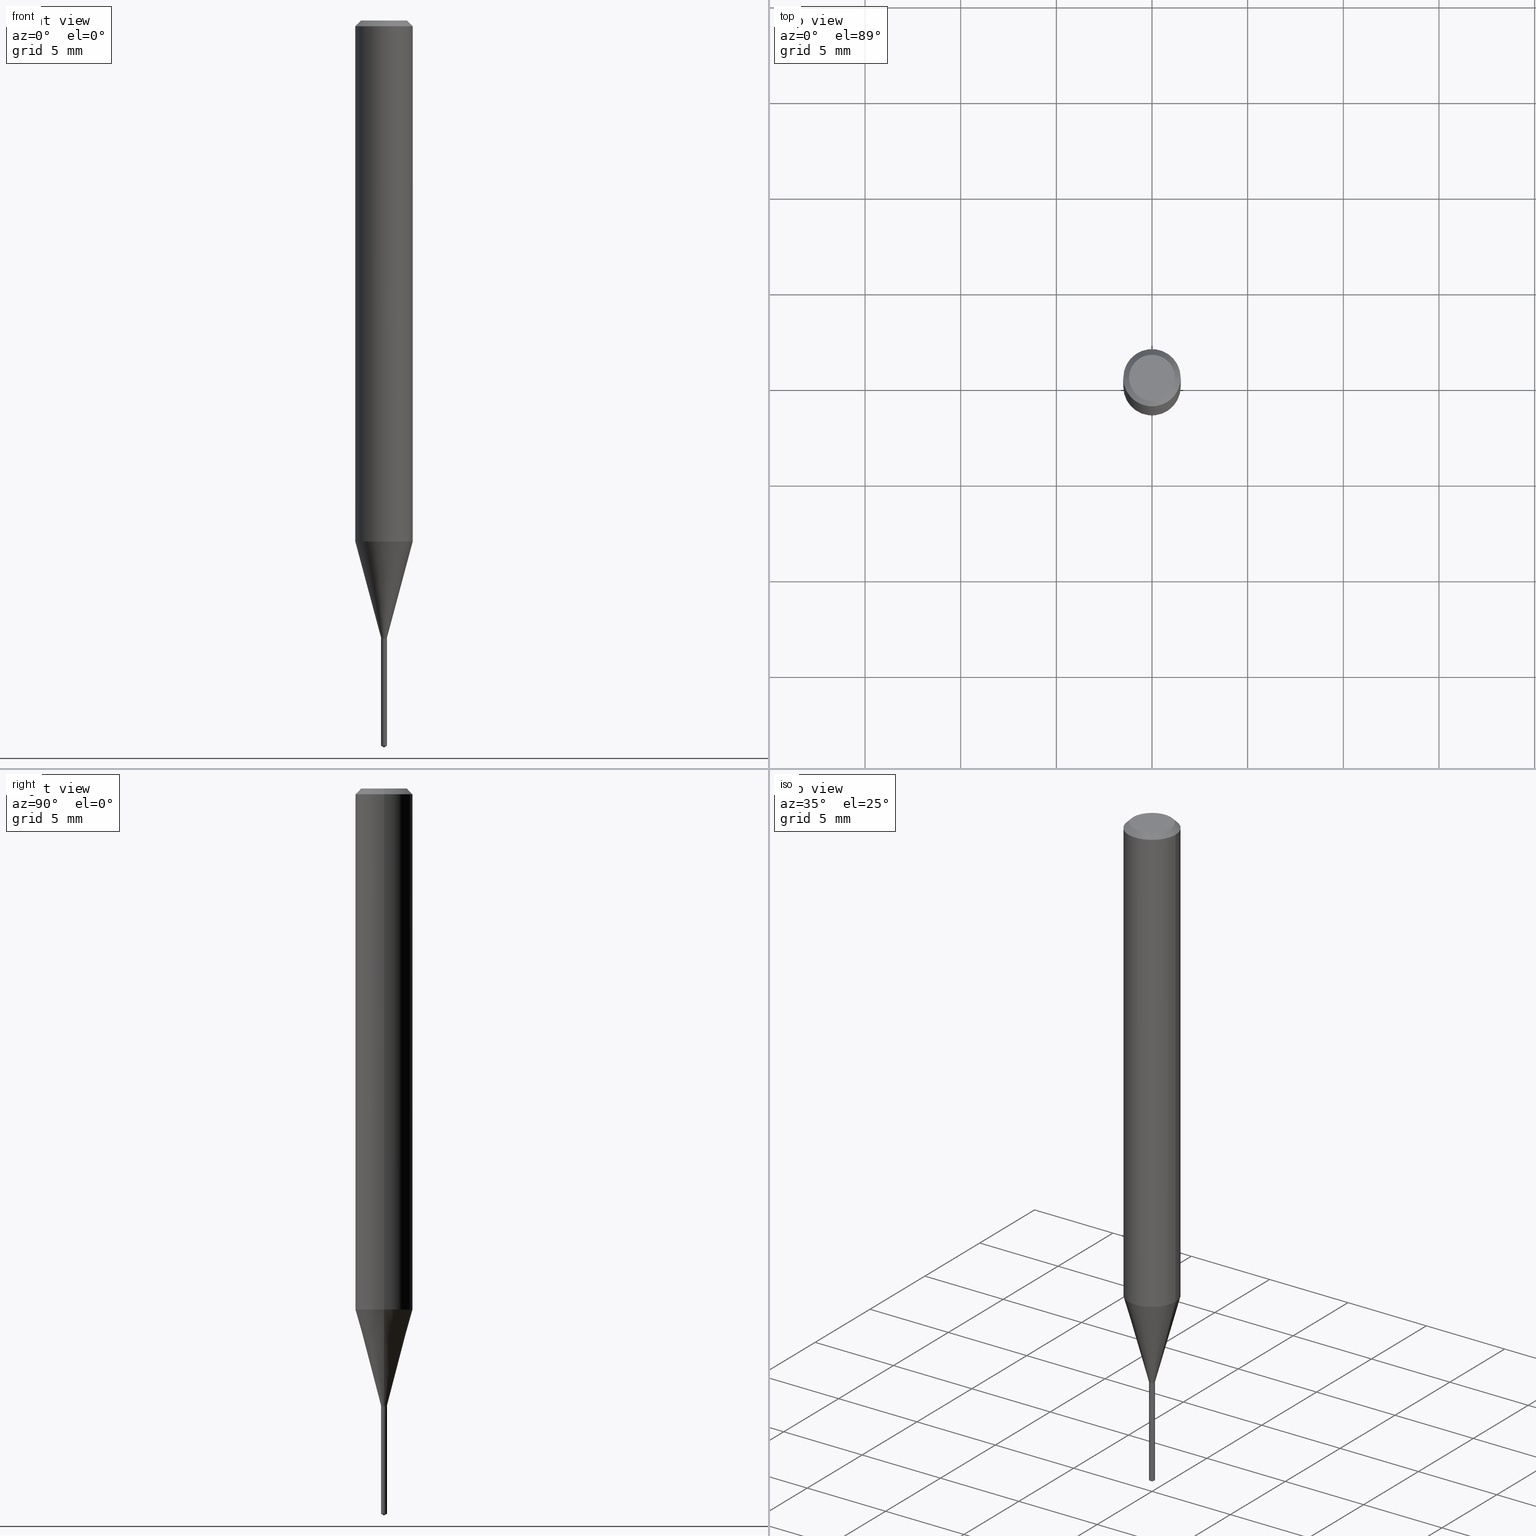
[diagram: canonical four-view strip — front | top / right | iso, engineering-drawing reading convention]
A machine part, canonical four-view strip (front | top / right | iso — engineering-drawing reading convention). The complete STEP part file that produces these views, byte-faithful:
ISO-10303-21;
HEADER;
FILE_DESCRIPTION (( 'STEP AP203' ),
    '1' );
FILE_NAME ('08255.STEP',
    '2024-04-24T13:57:39',
    ( '' ),
    ( '' ),
    'SwSTEP 2.0',
    'SolidWorks 2023',
    '' );
FILE_SCHEMA (( 'CONFIG_CONTROL_DESIGN' ));
ENDSEC;

DATA;
#1 = DIRECTION ( 'NONE',  ( -6.982962677686266711E-15, -1.000000000000000000, 0.000000000000000000 ) ) ;
#2 = ORIENTED_EDGE ( 'NONE', *, *, #7, .F. ) ;
#3 = PRODUCT_DEFINITION ( 'UNKNOWN', '', #20, #187 ) ;
#4 = AXIS2_PLACEMENT_3D ( 'NONE', #191, #333, #290 ) ;
#5 = ORIENTED_EDGE ( 'NONE', *, *, #41, .T. ) ;
#6 = EDGE_CURVE ( 'NONE', #53, #372, #478, .T. ) ;
#7 = EDGE_CURVE ( 'NONE', #81, #438, #35, .T. ) ;
#8 = AXIS2_PLACEMENT_3D ( 'NONE', #401, #367, #250 ) ;
#9 = DIRECTION ( 'NONE',  ( 1.000000000000000000, -6.982962677686266711E-15, 4.876176775795936353E-29 ) ) ;
#10 = VECTOR ( 'NONE', #48, 39.37007874015748143 ) ;
#11 = ORIENTED_EDGE ( 'NONE', *, *, #147, .T. ) ;
#12 = FACE_OUTER_BOUND ( 'NONE', #88, .T. ) ;
#13 = ORIENTED_EDGE ( 'NONE', *, *, #189, .F. ) ;
#14 = LINE ( 'NONE', #59, #258 ) ;
#15 = ORIENTED_EDGE ( 'NONE', *, *, #272, .T. ) ;
#16 = APPROVAL ( #69, 'UNSPECIFIED' ) ;
#17 = DIRECTION ( 'NONE',  ( -2.445468806185136597E-29, 3.491481338843145583E-15, 1.000000000000000000 ) ) ;
#18 = DIMENSIONAL_EXPONENTS ( 1.000000000000000000, 0.000000000000000000, 0.000000000000000000, 0.000000000000000000, 0.000000000000000000, 0.000000000000000000, 0.000000000000000000 ) ;
#19 = CONICAL_SURFACE ( 'NONE', #28, 0.05904999999999999832, 0.7853981633974452814 ) ;
#20 = PRODUCT_DEFINITION_FORMATION_WITH_SPECIFIED_SOURCE ( 'ANY', '', #289, .NOT_KNOWN. ) ;
#21 = ORIENTED_EDGE ( 'NONE', *, *, #6, .F. ) ;
#22 = DIRECTION ( 'NONE',  ( 6.982962677686265922E-15, 1.000000000000000000, -3.495925524976047035E-15 ) ) ;
#23 = ORIENTED_EDGE ( 'NONE', *, *, #441, .T. ) ;
#24 = DIRECTION ( 'NONE',  ( -2.445468806185136597E-29, 3.491481338843145583E-15, 1.000000000000000000 ) ) ;
#25 = CC_DESIGN_DATE_AND_TIME_ASSIGNMENT ( #332, #222, ( #3 ) ) ;
#26 = CARTESIAN_POINT ( 'NONE',  ( 3.109902680825637568E-29, -4.440116818606827304E-15, -1.271699999999999608 ) ) ;
#27 = CARTESIAN_POINT ( 'NONE',  ( 4.132873053354867254E-48, -5.900647395337818946E-34, -1.690012582823346072E-19 ) ) ;
#28 = AXIS2_PLACEMENT_3D ( 'NONE', #230, #124, #341 ) ;
#29 = AXIS2_PLACEMENT_3D ( 'NONE', #264, #345, #223 ) ;
#30 = DIRECTION ( 'NONE',  ( -0.7071067811868123609, 7.493145998871311837E-15, 0.7071067811862826735 ) ) ;
#31 = COORDINATED_UNIVERSAL_TIME_OFFSET ( 5, 0, .BEHIND. ) ;
#32 = DIRECTION ( 'NONE',  ( -2.445468806185136597E-29, 3.491481338843145583E-15, 1.000000000000000000 ) ) ;
#33 = CALENDAR_DATE ( 2024, 24, 4 ) ;
#34 = CYLINDRICAL_SURFACE ( 'NONE', #178, 0.006100000000000000387 ) ;
#35 = LINE ( 'NONE', #170, #134 ) ;
#36 = VECTOR ( 'NONE', #476, 39.37007874015748143 ) ;
#37 = AXIS2_PLACEMENT_3D ( 'NONE', #297, #454, #118 ) ;
#38 = CARTESIAN_POINT ( 'NONE',  ( 0.005599999999999999943, -4.479221409601870562E-15, -1.271699999999999608 ) ) ;
#39 = ORIENTED_EDGE ( 'NONE', *, *, #304, .T. ) ;
#40 = DIRECTION ( 'NONE',  ( -2.445468806185136597E-29, 3.491481338843145583E-15, 1.000000000000000000 ) ) ;
#41 = EDGE_CURVE ( 'NONE', #49, #339, #101, .T. ) ;
#42 = ORIENTED_EDGE ( 'NONE', *, *, #313, .T. ) ;
#43 = DATE_AND_TIME ( #406, #61 ) ;
#44 = EDGE_CURVE ( 'NONE', #428, #53, #435, .T. ) ;
#45 = ORIENTED_EDGE ( 'NONE', *, *, #384, .F. ) ;
#46 = EDGE_CURVE ( 'NONE', #232, #49, #141, .T. ) ;
#47 = ORIENTED_EDGE ( 'NONE', *, *, #338, .T. ) ;
#48 = DIRECTION ( 'NONE',  ( -2.445468806185136877E-29, 3.491481338843145188E-15, 1.000000000000000000 ) ) ;
#49 = VERTEX_POINT ( 'NONE', #99 ) ;
#50 = VECTOR ( 'NONE', #154, 39.37007874015748143 ) ;
#51 = VECTOR ( 'NONE', #301, 39.37007874015748143 ) ;
#52 = CARTESIAN_POINT ( 'NONE',  ( -0.005599999999999999943, -4.397677198230150930E-15, -1.271699999999999608 ) ) ;
#53 = VERTEX_POINT ( 'NONE', #316 ) ;
#54 = DIRECTION ( 'NONE',  ( 2.442365447595262098E-29, -3.495925524976047035E-15, -1.000000000000000000 ) ) ;
#55 = ORIENTED_EDGE ( 'NONE', *, *, #189, .T. ) ;
#56 = ADVANCED_FACE ( 'NONE', ( #481 ), #34, .T. ) ;
#57 = DIRECTION ( 'NONE',  ( -6.982962677686266711E-15, -1.000000000000000000, 0.000000000000000000 ) ) ;
#58 = ORIENTED_EDGE ( 'NONE', *, *, #77, .T. ) ;
#59 = CARTESIAN_POINT ( 'NONE',  ( 3.661985241398944882E-29, -5.218950834906241495E-15, -1.496099999999999985 ) ) ;
#60 = AXIS2_PLACEMENT_3D ( 'NONE', #26, #473, #136 ) ;
#61 = LOCAL_TIME ( 9, 57, 39.00000000000000000, #447 ) ;
#62 = VERTEX_POINT ( 'NONE', #440 ) ;
#63 = DIRECTION ( 'NONE',  ( -6.982962677686264344E-15, -1.000000000000000000, 3.468864327941504678E-15 ) ) ;
#64 = DIRECTION ( 'NONE',  ( -2.445468806185136877E-29, 3.491481338843145188E-15, 1.000000000000000000 ) ) ;
#65 = DIRECTION ( 'NONE',  ( 1.000000000000000000, -6.982962677686284854E-15, 0.000000000000000000 ) ) ;
#66 = DIRECTION ( 'NONE',  ( -2.445468806185136877E-29, 3.491481338843145188E-15, 1.000000000000000000 ) ) ;
#67 = CIRCLE ( 'NONE', #337, 0.005599999999999999943 ) ;
#68 = CARTESIAN_POINT ( 'NONE',  ( 0.006100000000000000387, -4.259607233388623398E-17, 2.974467833235520949E-31 ) ) ;
#69 = APPROVAL_STATUS ( 'not_yet_approved' ) ;
#70 = DIRECTION ( 'NONE',  ( -2.442365447595262378E-29, 3.495925524976047035E-15, 1.000000000000000000 ) ) ;
#71 = DIRECTION ( 'NONE',  ( 1.000000000000000000, -6.982962677686284854E-15, 0.000000000000000000 ) ) ;
#72 = PERSON_AND_ORGANIZATION ( #245, #169 ) ;
#73 = FACE_OUTER_BOUND ( 'NONE', #311, .T. ) ;
#74 = ORIENTED_EDGE ( 'NONE', *, *, #394, .F. ) ;
#75 = AXIS2_PLACEMENT_3D ( 'NONE', #274, #54, #22 ) ;
#76 = PERSON_AND_ORGANIZATION_ROLE ( 'creator' ) ;
#77 = EDGE_CURVE ( 'NONE', #93, #438, #151, .T. ) ;
#78 = DIRECTION ( 'NONE',  ( 1.000000000000000000, -6.982962677686267499E-15, 4.876176775795935793E-29 ) ) ;
#79 = VECTOR ( 'NONE', #64, 39.37007874015748143 ) ;
#80 = CIRCLE ( 'NONE', #318, 0.04724000000000000421 ) ;
#81 = VERTEX_POINT ( 'NONE', #143 ) ;
#82 = DIRECTION ( 'NONE',  ( -2.442365447595262378E-29, 3.495925524976047035E-15, 1.000000000000000000 ) ) ;
#83 = ORIENTED_EDGE ( 'NONE', *, *, #272, .F. ) ;
#84 = CARTESIAN_POINT ( 'NONE',  ( -4.259607233385512945E-17, -0.006100000000004440412, -1.271700000000000053 ) ) ;
#85 = ORIENTED_EDGE ( 'NONE', *, *, #201, .T. ) ;
#86 = AXIS2_PLACEMENT_3D ( 'NONE', #431, #97, #246 ) ;
#87 = CARTESIAN_POINT ( 'NONE',  ( 3.109902680825637568E-29, -4.440116818606827304E-15, -1.271699999999999608 ) ) ;
#88 = EDGE_LOOP ( 'NONE', ( #23, #128, #466, #83 ) ) ;
#89 = CARTESIAN_POINT ( 'NONE',  ( -9.249815049679942721E-28, 1.324102606816218834E-13, 37.87397874015748300 ) ) ;
#90 = ORIENTED_EDGE ( 'NONE', *, *, #464, .T. ) ;
#91 = EDGE_CURVE ( 'NONE', #261, #49, #105, .T. ) ;
#92 = DIRECTION ( 'NONE',  ( -1.000000000000000000, 6.982962677686265922E-15, -4.876176775795935793E-29 ) ) ;
#93 = VERTEX_POINT ( 'NONE', #288 ) ;
#94 = ADVANCED_FACE ( 'NONE', ( #445 ), #317, .T. ) ;
#95 = DIRECTION ( 'NONE',  ( 0.2588190451025213501, 1.565188264969621968E-15, 0.9659258262890682012 ) ) ;
#96 = CC_DESIGN_APPROVAL ( #16, ( #3 ) ) ;
#97 = DIRECTION ( 'NONE',  ( -2.445468806185136597E-29, 3.491481338843145583E-15, 1.000000000000000000 ) ) ;
#98 = FACE_OUTER_BOUND ( 'NONE', #383, .T. ) ;
#99 = CARTESIAN_POINT ( 'NONE',  ( -0.006100000000000000387, -4.392758508185793747E-15, -1.271200000000000108 ) ) ;
#100 = CYLINDRICAL_SURFACE ( 'NONE', #126, 0.05905000000000006771 ) ;
#101 = LINE ( 'NONE', #323, #465 ) ;
#102 = COORDINATED_UNIVERSAL_TIME_OFFSET ( 5, 0, .BEHIND. ) ;
#103 = ADVANCED_FACE ( 'NONE', ( #206 ), #262, .T. ) ;
#104 = AXIS2_PLACEMENT_3D ( 'NONE', #348, #391, #354 ) ;
#105 = LINE ( 'NONE', #326, #308 ) ;
#106 = PERSON_AND_ORGANIZATION ( #245, #169 ) ;
#107 = DIRECTION ( 'NONE',  ( -2.445468806185136597E-29, 3.491481338843145583E-15, 1.000000000000000000 ) ) ;
#108 = DATE_AND_TIME ( #172, #329 ) ;
#109 = CYLINDRICAL_SURFACE ( 'NONE', #296, 0.05905000000000006771 ) ;
#110 = EDGE_CURVE ( 'NONE', #200, #339, #279, .T. ) ;
#111 = CARTESIAN_POINT ( 'NONE',  ( 3.649017607856140477E-29, -5.211789066163883408E-15, -1.492434750223931905 ) ) ;
#112 = AXIS2_PLACEMENT_3D ( 'NONE', #277, #307, #429 ) ;
#113 = VERTEX_POINT ( 'NONE', #243 ) ;
#114 = COORDINATED_UNIVERSAL_TIME_OFFSET ( 5, 0, .BEHIND. ) ;
#115 = EDGE_CURVE ( 'NONE', #232, #200, #392, .T. ) ;
#116 = CLOSED_SHELL ( 'NONE', ( #347, #364, #474, #56, #425 ) ) ;
#117 = CIRCLE ( 'NONE', #194, 0.04724000000000000421 ) ;
#118 = DIRECTION ( 'NONE',  ( -6.982962677686264344E-15, -1.000000000000000000, 3.468864327941504678E-15 ) ) ;
#119 = MANIFOLD_SOLID_BREP ( 'Body-Move/Copy2[1]', #116 ) ;
#120 = ORIENTED_EDGE ( 'NONE', *, *, #44, .F. ) ;
#121 = CARTESIAN_POINT ( 'NONE',  ( -0.05904999999999999832, 3.711095515056362547E-16, -0.01181000000000007044 ) ) ;
#122 = MANIFOLD_SOLID_BREP ( 'Body-Move/Copy2[2]', #482 ) ;
#123 = ORIENTED_EDGE ( 'NONE', *, *, #405, .F. ) ;
#124 = DIRECTION ( 'NONE',  ( 2.445468806185136597E-29, -3.491481338843145583E-15, -1.000000000000000000 ) ) ;
#125 = ORIENTED_EDGE ( 'NONE', *, *, #402, .F. ) ;
#126 = AXIS2_PLACEMENT_3D ( 'NONE', #247, #197, #357 ) ;
#127 = FACE_OUTER_BOUND ( 'NONE', #309, .T. ) ;
#128 = ORIENTED_EDGE ( 'NONE', *, *, #7, .T. ) ;
#129 = CARTESIAN_POINT ( 'NONE',  ( -0.04724000000000000421, 3.504923541997677355E-16, -3.380025165670481712E-19 ) ) ;
#130 = ORIENTED_EDGE ( 'NONE', *, *, #46, .F. ) ;
#131 = PLANE ( 'NONE',  #112 ) ;
#132 = DIRECTION ( 'NONE',  ( -2.445468806185136597E-29, 3.491481338843145583E-15, 1.000000000000000000 ) ) ;
#133 = DIRECTION ( 'NONE',  ( -2.442365447595262378E-29, 3.495925524976047035E-15, 1.000000000000000000 ) ) ;
#134 = VECTOR ( 'NONE', #140, 39.37007874015748143 ) ;
#135 = AXIS2_PLACEMENT_3D ( 'NONE', #335, #82, #1 ) ;
#136 = DIRECTION ( 'NONE',  ( 1.000000000000000000, -6.982962677686193346E-15, 0.000000000000000000 ) ) ;
#137 = DIRECTION ( 'NONE',  ( -2.445468806185136597E-29, 3.491481338843145583E-15, 1.000000000000000000 ) ) ;
#138 = DIRECTION ( 'NONE',  ( -2.445468806185136597E-29, 3.491481338843145583E-15, 1.000000000000000000 ) ) ;
#139 = CALENDAR_DATE ( 2024, 24, 4 ) ;
#140 = DIRECTION ( 'NONE',  ( -2.445468806185136877E-29, 3.491481338843145188E-15, 1.000000000000000000 ) ) ;
#141 = CIRCLE ( 'NONE', #8, 0.006100000000000000387 ) ;
#142 =( GEOMETRIC_REPRESENTATION_CONTEXT ( 3 ) GLOBAL_UNCERTAINTY_ASSIGNED_CONTEXT ( ( #373 ) ) GLOBAL_UNIT_ASSIGNED_CONTEXT ( ( #148, #216, #181 ) ) REPRESENTATION_CONTEXT ( 'NONE', 'WORKASPACE' ) );
#143 = CARTESIAN_POINT ( 'NONE',  ( -0.05905000000000013710, -3.324297741255297411E-15, -1.072287909739227940 ) ) ;
#144 = CC_DESIGN_SECURITY_CLASSIFICATION ( #263, ( #20 ) ) ;
#145 = APPROVAL_STATUS ( 'not_yet_approved' ) ;
#146 = DIRECTION ( 'NONE',  ( -1.000000000000000000, 6.982962677686266711E-15, 0.000000000000000000 ) ) ;
#147 = EDGE_CURVE ( 'NONE', #261, #193, #375, .T. ) ;
#148 =( CONVERSION_BASED_UNIT ( 'INCH', #439 ) LENGTH_UNIT ( ) NAMED_UNIT ( #18 ) );
#149 = CYLINDRICAL_SURFACE ( 'NONE', #415, 0.006100000000000000387 ) ;
#150 = CARTESIAN_POINT ( 'NONE',  ( 0.000000000000000000, 0.000000000000000000, 0.000000000000000000 ) ) ;
#151 = CIRCLE ( 'NONE', #210, 0.05904999999999999832 ) ;
#152 = VERTEX_POINT ( 'NONE', #208 ) ;
#153 = AXIS2_PLACEMENT_3D ( 'NONE', #158, #165, #239 ) ;
#154 = DIRECTION ( 'NONE',  ( -0.7071067811865453523, 2.468850131082234184E-15, -0.7071067811865496822 ) ) ;
#155 = ORIENTED_EDGE ( 'NONE', *, *, #405, .T. ) ;
#156 = DIRECTION ( 'NONE',  ( -2.442365447595262378E-29, 3.495925524976047035E-15, 1.000000000000000000 ) ) ;
#157 = ORIENTED_EDGE ( 'NONE', *, *, #110, .F. ) ;
#158 = CARTESIAN_POINT ( 'NONE',  ( 0.000000000000000000, 0.000000000000000000, 0.000000000000000000 ) ) ;
#159 = ORIENTED_EDGE ( 'NONE', *, *, #374, .T. ) ;
#160 = AXIS2_PLACEMENT_3D ( 'NONE', #291, #365, #176 ) ;
#161 = DIRECTION ( 'NONE',  ( 2.438088387897960049E-29, -3.491481338843145188E-15, -1.000000000000000000 ) ) ;
#162 = EDGE_LOOP ( 'NONE', ( #346, #85, #196, #275 ) ) ;
#163 = CARTESIAN_POINT ( 'NONE',  ( 3.649017607856140477E-29, -5.211789066163883408E-15, -1.492434750223931905 ) ) ;
#164 = ORIENTED_EDGE ( 'NONE', *, *, #455, .F. ) ;
#165 = DIRECTION ( 'NONE',  ( -2.445468806185136597E-29, 3.491481338843145583E-15, 1.000000000000000000 ) ) ;
#166 = ORIENTED_EDGE ( 'NONE', *, *, #304, .F. ) ;
#167 = DIRECTION ( 'NONE',  ( -2.442365447595262378E-29, 3.495925524976047035E-15, 1.000000000000000000 ) ) ;
#168 = AXIS2_PLACEMENT_3D ( 'NONE', #331, #461, #292 ) ;
#169 = ORGANIZATION ( 'UNSPECIFIED', 'UNSPECIFIED', '' ) ;
#170 = CARTESIAN_POINT ( 'NONE',  ( -0.05905000000000006771, 4.195754854663396409E-16, -2.904631170795525045E-30 ) ) ;
#171 = EDGE_CURVE ( 'NONE', #193, #232, #282, .T. ) ;
#172 = CALENDAR_DATE ( 2024, 24, 4 ) ;
#173 = CARTESIAN_POINT ( 'NONE',  ( 2.888098660104663766E-31, -4.123439461173779647E-17, -0.01181000000000007044 ) ) ;
#174 = PERSON_AND_ORGANIZATION ( #245, #169 ) ;
#175 = DIRECTION ( 'NONE',  ( 1.000000000000000000, -6.982962677686266711E-15, 0.000000000000000000 ) ) ;
#176 = DIRECTION ( 'NONE',  ( 1.000000000000000000, 0.000000000000000000, 0.000000000000000000 ) ) ;
#177 = CC_DESIGN_DATE_AND_TIME_ASSIGNMENT ( #403, #214, ( #263 ) ) ;
#178 = AXIS2_PLACEMENT_3D ( 'NONE', #321, #404, #366 ) ;
#179 = AXIS2_PLACEMENT_3D ( 'NONE', #87, #40, #305 ) ;
#180 = CARTESIAN_POINT ( 'NONE',  ( -0.006100000000000000387, -4.392758508185793747E-15, -1.269900000000000029 ) ) ;
#181 =( NAMED_UNIT ( * ) SI_UNIT ( $, .STERADIAN. ) SOLID_ANGLE_UNIT ( ) );
#182 = CARTESIAN_POINT ( 'NONE',  ( 0.05904999999999999832, -4.463468013801466955E-16, -0.01181000000000007044 ) ) ;
#183 = ORIENTED_EDGE ( 'NONE', *, *, #147, .F. ) ;
#184 = CARTESIAN_POINT ( 'NONE',  ( 4.334310688139720014E-17, 0.006099999999995560362, -1.271700000000000053 ) ) ;
#185 = ORIENTED_EDGE ( 'NONE', *, *, #91, .F. ) ;
#186 = EDGE_CURVE ( 'NONE', #372, #62, #450, .T. ) ;
#187 = DESIGN_CONTEXT ( 'detailed design', #361, 'design' ) ;
#188 = AXIS2_PLACEMENT_3D ( 'NONE', #199, #137, #281 ) ;
#189 = EDGE_CURVE ( 'NONE', #438, #93, #269, .T. ) ;
#190 = ORIENTED_EDGE ( 'NONE', *, *, #186, .T. ) ;
#191 = CARTESIAN_POINT ( 'NONE',  ( 3.105500836974505052E-29, -4.433832152196910680E-15, -1.269900000000000029 ) ) ;
#192 = EDGE_CURVE ( 'NONE', #381, #438, #448, .T. ) ;
#193 = VERTEX_POINT ( 'NONE', #38 ) ;
#194 = AXIS2_PLACEMENT_3D ( 'NONE', #436, #24, #387 ) ;
#195 = CARTESIAN_POINT ( 'NONE',  ( 0.04724000000000000421, -3.852183633974369345E-16, -3.380025165621689721E-19 ) ) ;
#196 = ORIENTED_EDGE ( 'NONE', *, *, #115, .T. ) ;
#197 = DIRECTION ( 'NONE',  ( -2.445468806185136597E-29, 3.491481338843145583E-15, 1.000000000000000000 ) ) ;
#198 = ORIENTED_EDGE ( 'NONE', *, *, #44, .T. ) ;
#199 = CARTESIAN_POINT ( 'NONE',  ( 2.622246634516745589E-29, -3.743873226721637693E-15, -1.072287909739227940 ) ) ;
#200 = VERTEX_POINT ( 'NONE', #488 ) ;
#201 = EDGE_CURVE ( 'NONE', #49, #232, #231, .T. ) ;
#202 = CIRCLE ( 'NONE', #104, 0.006100000000000000387 ) ;
#203 = DIRECTION ( 'NONE',  ( 6.090539988449821823E-15, 0.8571673007021198831, 0.5150380749100413880 ) ) ;
#204 = ORIENTED_EDGE ( 'NONE', *, *, #464, .F. ) ;
#205 = PLANE ( 'NONE',  #300 ) ;
#206 = FACE_OUTER_BOUND ( 'NONE', #336, .T. ) ;
#207 = PRODUCT_RELATED_PRODUCT_CATEGORY ( 'detail', '', ( #289 ) ) ;
#208 = CARTESIAN_POINT ( 'NONE',  ( 4.334310688140260507E-17, 0.006099999999994789278, -1.492434750223931905 ) ) ;
#209 = CALENDAR_DATE ( 2024, 24, 4 ) ;
#210 = AXIS2_PLACEMENT_3D ( 'NONE', #173, #138, #175 ) ;
#211 = CIRCLE ( 'NONE', #29, 0.05905000000000013710 ) ;
#212 = CARTESIAN_POINT ( 'NONE',  ( 3.105500836974505052E-29, -4.433832152196910680E-15, -1.269900000000000029 ) ) ;
#213 = ADVANCED_FACE ( 'NONE', ( #376 ), #19, .T. ) ;
#214 = DATE_TIME_ROLE ( 'classification_date' ) ;
#215 = CARTESIAN_POINT ( 'NONE',  ( -4.259607233385512945E-17, -0.006100000000004440412, -1.271700000000000053 ) ) ;
#216 =( NAMED_UNIT ( * ) PLANE_ANGLE_UNIT ( ) SI_UNIT ( $, .RADIAN. ) );
#217 = CARTESIAN_POINT ( 'NONE',  ( 3.654022946147271539E-29, -5.230254177916663487E-15, -1.496099999999999985 ) ) ;
#218 =( LENGTH_UNIT ( ) NAMED_UNIT ( * ) SI_UNIT ( $, .METRE. ) );
#219 = CONICAL_SURFACE ( 'NONE', #360, 65.52281426577012269, 1.029744258676665858 ) ;
#220 = DIRECTION ( 'NONE',  ( -2.445468806185136597E-29, 3.491481338843145583E-15, 1.000000000000000000 ) ) ;
#221 = ORIENTED_EDGE ( 'NONE', *, *, #201, .F. ) ;
#222 = DATE_TIME_ROLE ( 'creation_date' ) ;
#223 = DIRECTION ( 'NONE',  ( 1.000000000000000000, -6.982962677686264344E-15, 0.000000000000000000 ) ) ;
#224 = EDGE_LOOP ( 'NONE', ( #185, #11, #229, #221 ) ) ;
#225 = AXIS2_PLACEMENT_3D ( 'NONE', #398, #32, #378 ) ;
#226 = LOCAL_TIME ( 9, 57, 39.00000000000000000, #114 ) ;
#227 = ADVANCED_FACE ( 'NONE', ( #371 ), #328, .T. ) ;
#228 = FACE_OUTER_BOUND ( 'NONE', #358, .T. ) ;
#229 = ORIENTED_EDGE ( 'NONE', *, *, #171, .T. ) ;
#230 = CARTESIAN_POINT ( 'NONE',  ( 2.888098660104663766E-31, -4.123439461173779647E-17, -0.01181000000000007044 ) ) ;
#231 = CIRCLE ( 'NONE', #168, 0.006100000000000000387 ) ;
#232 = VERTEX_POINT ( 'NONE', #369 ) ;
#233 = AXIS2_PLACEMENT_3D ( 'NONE', #434, #393, #65 ) ;
#234 = LINE ( 'NONE', #486, #10 ) ;
#235 = ORIENTED_EDGE ( 'NONE', *, *, #251, .F. ) ;
#236 = CARTESIAN_POINT ( 'NONE',  ( 3.654022946147271539E-29, -5.230254177916663487E-15, -1.496099999999999985 ) ) ;
#237 = ORIENTED_EDGE ( 'NONE', *, *, #384, .T. ) ;
#238 = CC_DESIGN_PERSON_AND_ORGANIZATION_ASSIGNMENT ( #72, #76, ( #3 ) ) ;
#239 = DIRECTION ( 'NONE',  ( 1.000000000000000000, -6.982962677686267499E-15, 4.876176775795935793E-29 ) ) ;
#240 = ORIENTED_EDGE ( 'NONE', *, *, #455, .T. ) ;
#241 = VECTOR ( 'NONE', #156, 39.37007874015748143 ) ;
#242 = FACE_OUTER_BOUND ( 'NONE', #413, .T. ) ;
#243 = CARTESIAN_POINT ( 'NONE',  ( 0.05905000000000013710, -4.156217172839012613E-15, -1.072287909739227940 ) ) ;
#244 = CARTESIAN_POINT ( 'NONE',  ( 3.109902680825637568E-29, -4.440116818606827304E-15, -1.271699999999999608 ) ) ;
#245 = PERSON ( 'UNSPECIFIED', 'UNSPECIFIED', 'UNSPECIFIED', ('UNSPECIFIED'), ('UNSPECIFIED'), ('UNSPECIFIED') ) ;
#246 = DIRECTION ( 'NONE',  ( 1.000000000000000000, -6.982962677686284854E-15, 0.000000000000000000 ) ) ;
#247 = CARTESIAN_POINT ( 'NONE',  ( 0.000000000000000000, 0.000000000000000000, 0.000000000000000000 ) ) ;
#248 = DIRECTION ( 'NONE',  ( -2.442365447595262378E-29, 3.495925524976047035E-15, 1.000000000000000000 ) ) ;
#249 = APPROVAL_ROLE ( '' ) ;
#250 = DIRECTION ( 'NONE',  ( 1.000000000000000000, -6.982962677686284854E-15, 0.000000000000000000 ) ) ;
#251 = EDGE_CURVE ( 'NONE', #152, #53, #351, .T. ) ;
#252 = ORIENTED_EDGE ( 'NONE', *, *, #171, .F. ) ;
#253 = APPROVAL_ROLE ( '' ) ;
#254 = CARTESIAN_POINT ( 'NONE',  ( 0.000000000000000000, 0.000000000000000000, 0.000000000000000000 ) ) ;
#255 = MECHANICAL_CONTEXT ( 'NONE', #419, 'mechanical' ) ;
#256 = ADVANCED_FACE ( 'NONE', ( #422 ), #483, .T. ) ;
#257 = AXIS2_PLACEMENT_3D ( 'NONE', #284, #248, #363 ) ;
#258 = VECTOR ( 'NONE', #203, 39.37007874015748143 ) ;
#259 = DIRECTION ( 'NONE',  ( -2.442365447595262378E-29, 3.495925524976047035E-15, 1.000000000000000000 ) ) ;
#260 = APPROVAL ( #145, 'UNSPECIFIED' ) ;
#261 = VERTEX_POINT ( 'NONE', #52 ) ;
#262 = CONICAL_SURFACE ( 'NONE', #295, 0.005599999999999999943, 0.7853981633978228682 ) ;
#263 = SECURITY_CLASSIFICATION ( '', '', #479 ) ;
#264 = CARTESIAN_POINT ( 'NONE',  ( 2.622246634516745589E-29, -3.743873226721637693E-15, -1.072287909739227940 ) ) ;
#265 = VERTEX_POINT ( 'NONE', #195 ) ;
#266 = DIRECTION ( 'NONE',  ( 2.445468806185136597E-29, -3.491481338843145583E-15, -1.000000000000000000 ) ) ;
#267 = EDGE_LOOP ( 'NONE', ( #344, #123, #457, #55 ) ) ;
#268 = LINE ( 'NONE', #184, #241 ) ;
#269 = CIRCLE ( 'NONE', #225, 0.05904999999999999832 ) ;
#270 = ORIENTED_EDGE ( 'NONE', *, *, #402, .T. ) ;
#271 = CARTESIAN_POINT ( 'NONE',  ( -0.006100000000000000387, -4.390489045315544609E-15, -1.269900000000000029 ) ) ;
#272 = EDGE_CURVE ( 'NONE', #113, #93, #234, .T. ) ;
#273 = EDGE_LOOP ( 'NONE', ( #298, #159, #426, #204 ) ) ;
#274 = CARTESIAN_POINT ( 'NONE',  ( 3.109902680825638129E-29, -4.440116818606828093E-15, -1.271700000000000053 ) ) ;
#275 = ORIENTED_EDGE ( 'NONE', *, *, #338, .F. ) ;
#276 = PRODUCT_DEFINITION_SHAPE ( 'NONE', 'NONE',  #3 ) ;
#277 = CARTESIAN_POINT ( 'NONE',  ( 4.643034633277553776E-28, 5.759722413751537845E-14, -1.271700000000000053 ) ) ;
#278 = DIRECTION ( 'NONE',  ( 1.000000000000000000, -6.982962677686193346E-15, 0.000000000000000000 ) ) ;
#279 = CIRCLE ( 'NONE', #86, 0.006100000000000000387 ) ;
#280 = CIRCLE ( 'NONE', #4, 0.006100000000000000387 ) ;
#281 = DIRECTION ( 'NONE',  ( 1.000000000000000000, -6.982962677686264344E-15, 0.000000000000000000 ) ) ;
#282 = LINE ( 'NONE', #359, #36 ) ;
#283 = FACE_OUTER_BOUND ( 'NONE', #162, .T. ) ;
#284 = CARTESIAN_POINT ( 'NONE',  ( 3.109902680825638129E-29, -4.440116818606828093E-15, -1.271700000000000053 ) ) ;
#285 = ORIENTED_EDGE ( 'NONE', *, *, #91, .T. ) ;
#286 = PERSON_AND_ORGANIZATION_ROLE ( 'creator' ) ;
#287 = APPROVAL_PERSON_ORGANIZATION ( #174, #412, #249 ) ;
#288 = CARTESIAN_POINT ( 'NONE',  ( 0.05904999999999999832, -4.535783407291118600E-16, -0.01181000000000007044 ) ) ;
#289 = PRODUCT ( '08255', '08255', '', ( #255 ) ) ;
#290 = DIRECTION ( 'NONE',  ( 1.000000000000000000, -6.982962677686284854E-15, 0.000000000000000000 ) ) ;
#291 = CARTESIAN_POINT ( 'NONE',  ( 0.000000000000000000, 0.000000000000000000, 0.000000000000000000 ) ) ;
#292 = DIRECTION ( 'NONE',  ( 1.000000000000000000, -6.982962677686284854E-15, 0.000000000000000000 ) ) ;
#293 = ADVANCED_FACE ( 'NONE', ( #228 ), #149, .T. ) ;
#294 = APPLICATION_PROTOCOL_DEFINITION ( 'international standard', 'config_control_design', 1994, #419 ) ;
#295 = AXIS2_PLACEMENT_3D ( 'NONE', #314, #132, #278 ) ;
#296 = AXIS2_PLACEMENT_3D ( 'NONE', #254, #459, #9 ) ;
#297 = CARTESIAN_POINT ( 'NONE',  ( -9.249815049679942721E-28, 1.324102606816218834E-13, 37.87397874015748300 ) ) ;
#298 = ORIENTED_EDGE ( 'NONE', *, *, #110, .T. ) ;
#299 = EDGE_CURVE ( 'NONE', #81, #113, #211, .T. ) ;
#300 = AXIS2_PLACEMENT_3D ( 'NONE', #27, #161, #92 ) ;
#301 = DIRECTION ( 'NONE',  ( 0.7071067811865453523, -7.319954787623248157E-15, -0.7071067811865496822 ) ) ;
#302 = ORIENTED_EDGE ( 'NONE', *, *, #186, .F. ) ;
#303 = SHAPE_DEFINITION_REPRESENTATION ( #276, #421 ) ;
#304 = EDGE_CURVE ( 'NONE', #152, #62, #268, .T. ) ;
#305 = DIRECTION ( 'NONE',  ( 1.000000000000000000, -6.982962677686193346E-15, 0.000000000000000000 ) ) ;
#306 = ORIENTED_EDGE ( 'NONE', *, *, #46, .T. ) ;
#307 = DIRECTION ( 'NONE',  ( -2.438088387897960049E-29, 3.491481338843145188E-15, 1.000000000000000000 ) ) ;
#308 = VECTOR ( 'NONE', #30, 39.37007874015748143 ) ;
#309 = EDGE_LOOP ( 'NONE', ( #125, #183 ) ) ;
#310 = DIRECTION ( 'NONE',  ( 1.000000000000000000, -6.982962677686266711E-15, 4.876185090822587894E-29 ) ) ;
#311 = EDGE_LOOP ( 'NONE', ( #120, #240, #386 ) ) ;
#312 = CARTESIAN_POINT ( 'NONE',  ( -0.05904999999999999832, -1.472978325200347232E-15, -0.01181000000000007044 ) ) ;
#313 = EDGE_CURVE ( 'NONE', #265, #93, #382, .T. ) ;
#314 = CARTESIAN_POINT ( 'NONE',  ( 3.109902680825637568E-29, -4.440116818606827304E-15, -1.271699999999999608 ) ) ;
#315 = CARTESIAN_POINT ( 'NONE',  ( 0.006100000000000000387, -4.476428224530796945E-15, -1.269900000000000029 ) ) ;
#316 = CARTESIAN_POINT ( 'NONE',  ( -4.259607233384974917E-17, -0.006100000000005213231, -1.492434750223931905 ) ) ;
#317 = CONICAL_SURFACE ( 'NONE', #442, 0.006100000000000000387, 0.2617993877991500740 ) ;
#318 = AXIS2_PLACEMENT_3D ( 'NONE', #471, #475, #310 ) ;
#319 = CC_DESIGN_APPROVAL ( #260, ( #263 ) ) ;
#320 = DIRECTION ( 'NONE',  ( 1.000000000000000000, -6.982962677686193346E-15, 0.000000000000000000 ) ) ;
#321 = CARTESIAN_POINT ( 'NONE',  ( 3.109902680825638129E-29, -4.440116818606828093E-15, -1.271700000000000053 ) ) ;
#322 = PERSON_AND_ORGANIZATION ( #245, #169 ) ;
#323 = CARTESIAN_POINT ( 'NONE',  ( -0.006100000000000000387, 4.334310688136611409E-17, -3.000550405055492493E-31 ) ) ;
#324 = APPROVAL_DATE_TIME ( #108, #412 ) ;
#325 = CC_DESIGN_PERSON_AND_ORGANIZATION_ASSIGNMENT ( #370, #485, ( #263 ) ) ;
#326 = CARTESIAN_POINT ( 'NONE',  ( -0.005599999999999999943, -4.400326425404262131E-15, -1.271699999999999608 ) ) ;
#327 = DATE_AND_TIME ( #33, #226 ) ;
#328 = CONICAL_SURFACE ( 'NONE', #368, 0.05904999999999999832, 0.7853981633974452814 ) ;
#329 = LOCAL_TIME ( 9, 57, 39.00000000000000000, #31 ) ;
#330 = LOCAL_TIME ( 9, 57, 39.00000000000000000, #102 ) ;
#331 = CARTESIAN_POINT ( 'NONE',  ( 3.108679946422545888E-29, -4.438371077937407378E-15, -1.271200000000000108 ) ) ;
#332 = DATE_AND_TIME ( #209, #452 ) ;
#333 = DIRECTION ( 'NONE',  ( -2.445468806185136597E-29, 3.491481338843145583E-15, 1.000000000000000000 ) ) ;
#334 = PERSON_AND_ORGANIZATION_ROLE ( 'design_owner' ) ;
#335 = CARTESIAN_POINT ( 'NONE',  ( 3.109902680825638129E-29, -4.440116818606828093E-15, -1.271700000000000053 ) ) ;
#336 = EDGE_LOOP ( 'NONE', ( #270, #285, #130, #252 ) ) ;
#337 = AXIS2_PLACEMENT_3D ( 'NONE', #244, #17, #320 ) ;
#338 = EDGE_CURVE ( 'NONE', #339, #200, #280, .T. ) ;
#339 = VERTEX_POINT ( 'NONE', #180 ) ;
#340 = APPROVAL_DATE_TIME ( #43, #260 ) ;
#341 = DIRECTION ( 'NONE',  ( -1.000000000000000000, 6.982962677686266711E-15, 0.000000000000000000 ) ) ;
#342 = CIRCLE ( 'NONE', #399, 0.006100000000000001255 ) ;
#343 = ADVANCED_FACE ( 'NONE', ( #12 ), #109, .T. ) ;
#344 = ORIENTED_EDGE ( 'NONE', *, *, #313, .F. ) ;
#345 = DIRECTION ( 'NONE',  ( -2.445468806185136597E-29, 3.491481338843145583E-15, 1.000000000000000000 ) ) ;
#346 = ORIENTED_EDGE ( 'NONE', *, *, #41, .F. ) ;
#347 = ADVANCED_FACE ( 'NONE', ( #418 ), #407, .T. ) ;
#348 = CARTESIAN_POINT ( 'NONE',  ( 3.109902680825638129E-29, -4.440116818606828093E-15, -1.271700000000000053 ) ) ;
#349 = EDGE_LOOP ( 'NONE', ( #489, #47, #90, #395 ) ) ;
#350 = FACE_OUTER_BOUND ( 'NONE', #273, .T. ) ;
#351 = CIRCLE ( 'NONE', #430, 0.006100000000000001255 ) ;
#352 = ORIENTED_EDGE ( 'NONE', *, *, #192, .F. ) ;
#353 = CC_DESIGN_APPROVAL ( #412, ( #20 ) ) ;
#354 = DIRECTION ( 'NONE',  ( -6.982962677686266711E-15, -1.000000000000000000, 0.000000000000000000 ) ) ;
#355 = CC_DESIGN_PERSON_AND_ORGANIZATION_ASSIGNMENT ( #400, #477, ( #20 ) ) ;
#356 = ORIENTED_EDGE ( 'NONE', *, *, #251, .T. ) ;
#357 = DIRECTION ( 'NONE',  ( 1.000000000000000000, -6.982962677686266711E-15, 4.876176775795936353E-29 ) ) ;
#358 = EDGE_LOOP ( 'NONE', ( #306, #5, #157, #377 ) ) ;
#359 = CARTESIAN_POINT ( 'NONE',  ( 0.005599999999999999943, -4.479221409601870562E-15, -1.271699999999999608 ) ) ;
#360 = AXIS2_PLACEMENT_3D ( 'NONE', #89, #133, #63 ) ;
#361 = APPLICATION_CONTEXT ( 'configuration controlled 3d designs of mechanical parts and assemblies' ) ;
#362 = PERSON_AND_ORGANIZATION ( #245, #169 ) ;
#363 = DIRECTION ( 'NONE',  ( -6.982962677686266711E-15, -1.000000000000000000, 0.000000000000000000 ) ) ;
#364 = ADVANCED_FACE ( 'NONE', ( #73 ), #432, .T. ) ;
#365 = DIRECTION ( 'NONE',  ( 0.000000000000000000, 0.000000000000000000, 1.000000000000000000 ) ) ;
#366 = DIRECTION ( 'NONE',  ( -6.982962677686266711E-15, -1.000000000000000000, 0.000000000000000000 ) ) ;
#367 = DIRECTION ( 'NONE',  ( -2.445468806185136597E-29, 3.491481338843145583E-15, 1.000000000000000000 ) ) ;
#368 = AXIS2_PLACEMENT_3D ( 'NONE', #449, #266, #146 ) ;
#369 = CARTESIAN_POINT ( 'NONE',  ( 0.006100000000000000387, -4.480967150271293643E-15, -1.271200000000000108 ) ) ;
#370 = PERSON_AND_ORGANIZATION ( #245, #169 ) ;
#371 = FACE_OUTER_BOUND ( 'NONE', #267, .T. ) ;
#372 = VERTEX_POINT ( 'NONE', #84 ) ;
#373 = UNCERTAINTY_MEASURE_WITH_UNIT (LENGTH_MEASURE( 1.000000000000000082E-05 ), #148, 'distance_accuracy_value', 'NONE');
#374 = EDGE_CURVE ( 'NONE', #339, #81, #416, .T. ) ;
#375 = CIRCLE ( 'NONE', #60, 0.005599999999999999943 ) ;
#376 = FACE_OUTER_BOUND ( 'NONE', #462, .T. ) ;
#377 = ORIENTED_EDGE ( 'NONE', *, *, #115, .F. ) ;
#378 = DIRECTION ( 'NONE',  ( 1.000000000000000000, -6.982962677686266711E-15, 0.000000000000000000 ) ) ;
#379 = ADVANCED_FACE ( 'NONE', ( #467 ), #205, .F. ) ;
#380 = CONICAL_SURFACE ( 'NONE', #233, 0.006100000000000000387, 0.2617993877991500740 ) ;
#381 = VERTEX_POINT ( 'NONE', #129 ) ;
#382 = LINE ( 'NONE', #182, #51 ) ;
#383 = EDGE_LOOP ( 'NONE', ( #190, #420 ) ) ;
#384 = EDGE_CURVE ( 'NONE', #265, #381, #117, .T. ) ;
#385 = DIRECTION ( 'NONE',  ( -0.2588190451025213501, 5.211531920934551042E-15, 0.9659258262890682012 ) ) ;
#386 = ORIENTED_EDGE ( 'NONE', *, *, #433, .F. ) ;
#387 = DIRECTION ( 'NONE',  ( 1.000000000000000000, -6.982962677686266711E-15, 4.876185090822587894E-29 ) ) ;
#388 = VECTOR ( 'NONE', #470, 39.37007874015748854 ) ;
#389 = EDGE_LOOP ( 'NONE', ( #155, #237 ) ) ;
#390 = VECTOR ( 'NONE', #95, 39.37007874015747433 ) ;
#391 = DIRECTION ( 'NONE',  ( -2.442365447595262378E-29, 3.495925524976047035E-15, 1.000000000000000000 ) ) ;
#392 = LINE ( 'NONE', #68, #79 ) ;
#393 = DIRECTION ( 'NONE',  ( -2.445468806185136597E-29, 3.491481338843145583E-15, 1.000000000000000000 ) ) ;
#394 = EDGE_CURVE ( 'NONE', #62, #372, #202, .T. ) ;
#395 = ORIENTED_EDGE ( 'NONE', *, *, #299, .F. ) ;
#396 = APPROVAL_DATE_TIME ( #327, #16 ) ;
#397 = CC_DESIGN_PERSON_AND_ORGANIZATION_ASSIGNMENT ( #322, #286, ( #20 ) ) ;
#398 = CARTESIAN_POINT ( 'NONE',  ( 2.888098660104663766E-31, -4.123439461173779647E-17, -0.01181000000000007044 ) ) ;
#399 = AXIS2_PLACEMENT_3D ( 'NONE', #163, #167, #57 ) ;
#400 = PERSON_AND_ORGANIZATION ( #245, #169 ) ;
#401 = CARTESIAN_POINT ( 'NONE',  ( 3.108679946422545888E-29, -4.438371077937407378E-15, -1.271200000000000108 ) ) ;
#402 = EDGE_CURVE ( 'NONE', #193, #261, #67, .T. ) ;
#403 = DATE_AND_TIME ( #139, #330 ) ;
#404 = DIRECTION ( 'NONE',  ( -2.442365447595262378E-29, 3.495925524976047035E-15, 1.000000000000000000 ) ) ;
#405 = EDGE_CURVE ( 'NONE', #381, #265, #80, .T. ) ;
#406 = CALENDAR_DATE ( 2024, 24, 4 ) ;
#407 = CYLINDRICAL_SURFACE ( 'NONE', #135, 0.006100000000000000387 ) ;
#408 = APPLICATION_PROTOCOL_DEFINITION ( 'international standard', 'config_control_design', 1994, #361 ) ;
#409 = CIRCLE ( 'NONE', #188, 0.05905000000000013710 ) ;
#410 = DIRECTION ( 'NONE',  ( -6.982962677686266711E-15, -1.000000000000000000, 0.000000000000000000 ) ) ;
#411 = EDGE_LOOP ( 'NONE', ( #164, #198, #235 ) ) ;
#412 = APPROVAL ( #487, 'UNSPECIFIED' ) ;
#413 = EDGE_LOOP ( 'NONE', ( #2, #460, #15, #13 ) ) ;
#414 = VECTOR ( 'NONE', #70, 39.37007874015748143 ) ;
#415 = AXIS2_PLACEMENT_3D ( 'NONE', #150, #220, #78 ) ;
#416 = LINE ( 'NONE', #271, #472 ) ;
#417 = ORIENTED_EDGE ( 'NONE', *, *, #6, .T. ) ;
#418 = FACE_OUTER_BOUND ( 'NONE', #468, .T. ) ;
#419 = APPLICATION_CONTEXT ( 'configuration controlled 3d designs of mechanical parts and assemblies' ) ;
#420 = ORIENTED_EDGE ( 'NONE', *, *, #394, .T. ) ;
#421 = ADVANCED_BREP_SHAPE_REPRESENTATION ( '08255', ( #119, #122, #160 ), #142 ) ;
#422 = FACE_OUTER_BOUND ( 'NONE', #224, .T. ) ;
#423 = ORIENTED_EDGE ( 'NONE', *, *, #433, .T. ) ;
#424 = FACE_OUTER_BOUND ( 'NONE', #411, .T. ) ;
#425 = ADVANCED_FACE ( 'NONE', ( #98 ), #427, .F. ) ;
#426 = ORIENTED_EDGE ( 'NONE', *, *, #441, .F. ) ;
#427 = PLANE ( 'NONE',  #75 ) ;
#428 = VERTEX_POINT ( 'NONE', #236 ) ;
#429 = DIRECTION ( 'NONE',  ( 1.000000000000000000, -6.982962677686265922E-15, 4.876176775795935793E-29 ) ) ;
#430 = AXIS2_PLACEMENT_3D ( 'NONE', #111, #259, #410 ) ;
#431 = CARTESIAN_POINT ( 'NONE',  ( 3.105500836974505052E-29, -4.433832152196910680E-15, -1.269900000000000029 ) ) ;
#432 = CONICAL_SURFACE ( 'NONE', #37, 65.52281426577012269, 1.029744258676665858 ) ;
#433 = EDGE_CURVE ( 'NONE', #53, #152, #342, .T. ) ;
#434 = CARTESIAN_POINT ( 'NONE',  ( 3.105500836974505052E-29, -4.433832152196910680E-15, -1.269900000000000029 ) ) ;
#435 = LINE ( 'NONE', #217, #388 ) ;
#436 = CARTESIAN_POINT ( 'NONE',  ( 8.265746106709734507E-48, -1.180129479067563789E-33, -3.380025165646692144E-19 ) ) ;
#437 = CC_DESIGN_PERSON_AND_ORGANIZATION_ASSIGNMENT ( #362, #334, ( #289 ) ) ;
#438 = VERTEX_POINT ( 'NONE', #312 ) ;
#439 = LENGTH_MEASURE_WITH_UNIT ( LENGTH_MEASURE( 0.02539999999999999897 ), #218 );
#440 = CARTESIAN_POINT ( 'NONE',  ( 4.334310688140262972E-17, 0.006099999999995558628, -1.271700000000000053 ) ) ;
#441 = EDGE_CURVE ( 'NONE', #113, #81, #409, .T. ) ;
#442 = AXIS2_PLACEMENT_3D ( 'NONE', #212, #107, #71 ) ;
#443 = APPROVAL_PERSON_ORGANIZATION ( #490, #16, #451 ) ;
#444 = COORDINATED_UNIVERSAL_TIME_OFFSET ( 5, 0, .BEHIND. ) ;
#445 = FACE_OUTER_BOUND ( 'NONE', #349, .T. ) ;
#446 = ADVANCED_FACE ( 'NONE', ( #283 ), #469, .T. ) ;
#447 = COORDINATED_UNIVERSAL_TIME_OFFSET ( 5, 0, .BEHIND. ) ;
#448 = LINE ( 'NONE', #121, #50 ) ;
#449 = CARTESIAN_POINT ( 'NONE',  ( 2.888098660104663766E-31, -4.123439461173779647E-17, -0.01181000000000007044 ) ) ;
#450 = CIRCLE ( 'NONE', #257, 0.006100000000000000387 ) ;
#451 = APPROVAL_ROLE ( '' ) ;
#452 = LOCAL_TIME ( 9, 57, 39.00000000000000000, #444 ) ;
#453 = ADVANCED_FACE ( 'NONE', ( #242 ), #100, .T. ) ;
#454 = DIRECTION ( 'NONE',  ( -2.442365447595262378E-29, 3.495925524976047035E-15, 1.000000000000000000 ) ) ;
#455 = EDGE_CURVE ( 'NONE', #428, #152, #14, .T. ) ;
#456 = EDGE_LOOP ( 'NONE', ( #166, #356, #417, #74 ) ) ;
#457 = ORIENTED_EDGE ( 'NONE', *, *, #192, .T. ) ;
#458 = ADVANCED_FACE ( 'NONE', ( #127 ), #131, .F. ) ;
#459 = DIRECTION ( 'NONE',  ( -2.445468806185136597E-29, 3.491481338843145583E-15, 1.000000000000000000 ) ) ;
#460 = ORIENTED_EDGE ( 'NONE', *, *, #299, .T. ) ;
#461 = DIRECTION ( 'NONE',  ( -2.445468806185136597E-29, 3.491481338843145583E-15, 1.000000000000000000 ) ) ;
#462 = EDGE_LOOP ( 'NONE', ( #45, #42, #58, #352 ) ) ;
#463 = LINE ( 'NONE', #315, #390 ) ;
#464 = EDGE_CURVE ( 'NONE', #200, #113, #463, .T. ) ;
#465 = VECTOR ( 'NONE', #66, 39.37007874015748143 ) ;
#466 = ORIENTED_EDGE ( 'NONE', *, *, #77, .F. ) ;
#467 = FACE_OUTER_BOUND ( 'NONE', #389, .T. ) ;
#468 = EDGE_LOOP ( 'NONE', ( #423, #39, #302, #21 ) ) ;
#469 = CYLINDRICAL_SURFACE ( 'NONE', #153, 0.006100000000000000387 ) ;
#470 = DIRECTION ( 'NONE',  ( -5.985567269335983878E-15, -0.8571673007021163304, 0.5150380749100472721 ) ) ;
#471 = CARTESIAN_POINT ( 'NONE',  ( 8.265746106709734507E-48, -1.180129479067563789E-33, -3.380025165646692144E-19 ) ) ;
#472 = VECTOR ( 'NONE', #385, 39.37007874015747433 ) ;
#473 = DIRECTION ( 'NONE',  ( -2.445468806185136597E-29, 3.491481338843145583E-15, 1.000000000000000000 ) ) ;
#474 = ADVANCED_FACE ( 'NONE', ( #424 ), #219, .T. ) ;
#475 = DIRECTION ( 'NONE',  ( -2.445468806185136597E-29, 3.491481338843145583E-15, 1.000000000000000000 ) ) ;
#476 = DIRECTION ( 'NONE',  ( 0.7071067811868123609, -2.468850131085031090E-15, 0.7071067811862826735 ) ) ;
#477 = PERSON_AND_ORGANIZATION_ROLE ( 'design_supplier' ) ;
#478 = LINE ( 'NONE', #215, #414 ) ;
#479 = SECURITY_CLASSIFICATION_LEVEL ( 'unclassified' ) ;
#480 = ADVANCED_FACE ( 'NONE', ( #350 ), #380, .T. ) ;
#481 = FACE_OUTER_BOUND ( 'NONE', #456, .T. ) ;
#482 = CLOSED_SHELL ( 'NONE', ( #103, #213, #343, #480, #293, #446, #94, #453, #227, #379, #458, #256 ) ) ;
#483 = CONICAL_SURFACE ( 'NONE', #179, 0.005599999999999999943, 0.7853981633978228682 ) ;
#484 = APPROVAL_PERSON_ORGANIZATION ( #106, #260, #253 ) ;
#485 = PERSON_AND_ORGANIZATION_ROLE ( 'classification_officer' ) ;
#486 = CARTESIAN_POINT ( 'NONE',  ( 0.05905000000000006771, -4.123439461173745257E-16, 2.879382386107503723E-30 ) ) ;
#487 = APPROVAL_STATUS ( 'not_yet_approved' ) ;
#488 = CARTESIAN_POINT ( 'NONE',  ( 0.006100000000000000387, -4.476428224530796945E-15, -1.269900000000000029 ) ) ;
#489 = ORIENTED_EDGE ( 'NONE', *, *, #374, .F. ) ;
#490 = PERSON_AND_ORGANIZATION ( #245, #169 ) ;
ENDSEC;
END-ISO-10303-21;
